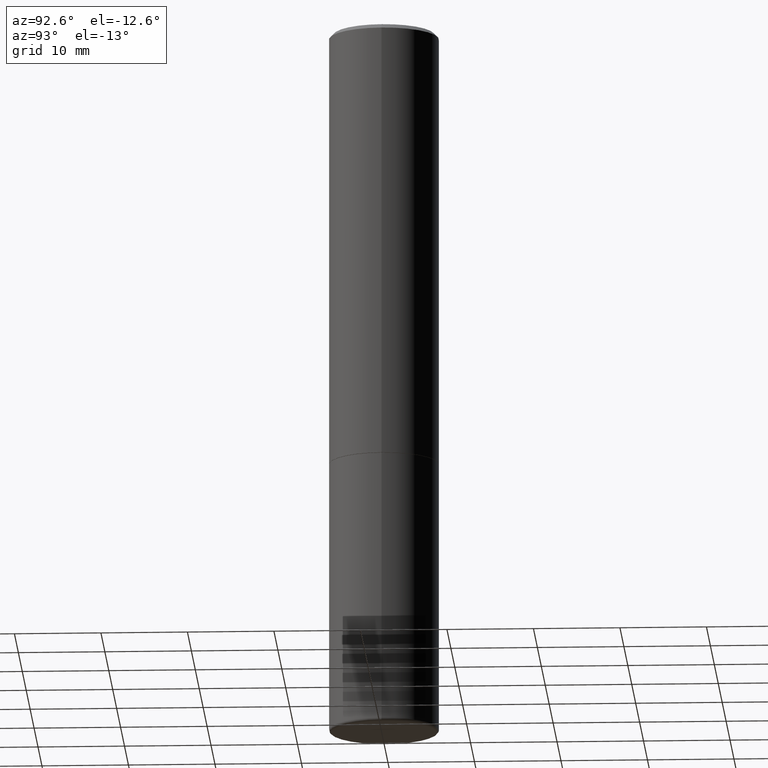
[diagram: clean part render]
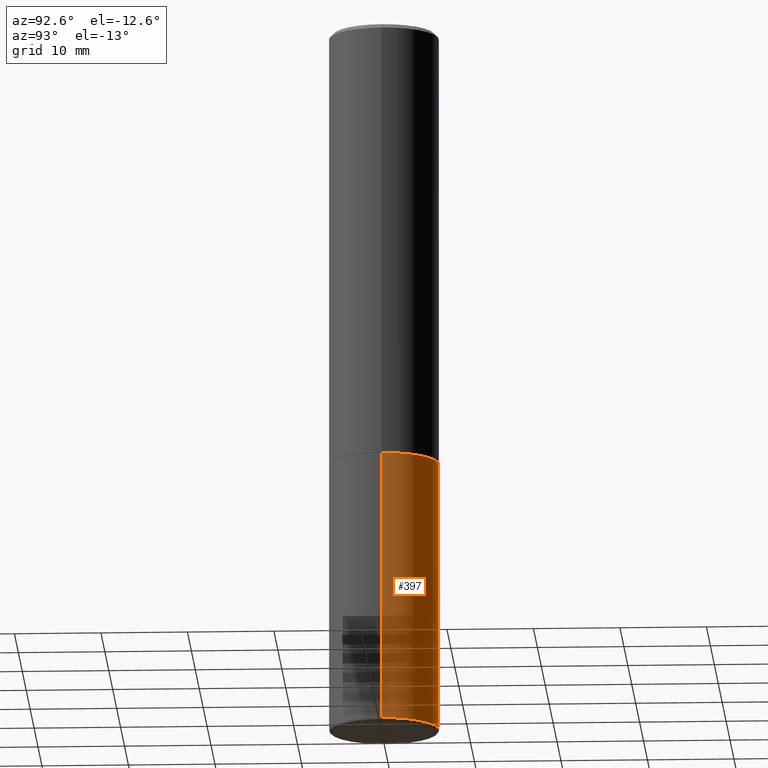
[diagram: same view with one face highlighted and labeled with its STEP entity id]
A machine part, auxiliary view. The second image highlights one B-rep face of the part: STEP entity #397.
In plain terms, the highlighted cylindrical surface (partial cylindrical patch) has radius 6.35 mm, axis along (-0, 0, 1).
Its self-contained STEP definition (entity closure, byte-faithful):
#7 = DIRECTION ( 'NONE',  ( 1.000000000000000000, -6.982962677686266711E-15, 0.000000000000000000 ) ) ;
#15 = DIRECTION ( 'NONE',  ( 1.000000000000000000, -6.982962677686266711E-15, 4.876176775795935793E-29 ) ) ;
#18 = AXIS2_PLACEMENT_3D ( 'NONE', #314, #23, #50 ) ;
#23 = DIRECTION ( 'NONE',  ( -2.445468806185136597E-29, 3.491481338843145583E-15, 1.000000000000000000 ) ) ;
#50 = DIRECTION ( 'NONE',  ( 1.000000000000000000, -6.982962677686270655E-15, 0.000000000000000000 ) ) ;
#66 = EDGE_LOOP ( 'NONE', ( #366, #259, #293, #162 ) ) ;
#76 = CARTESIAN_POINT ( 'NONE',  ( 0.2500000000000000000, -8.728703347107858632E-15, -2.000000000000000444 ) ) ;
#87 = VECTOR ( 'NONE', #333, 39.37007874015748143 ) ;
#104 = LINE ( 'NONE', #133, #87 ) ;
#120 = EDGE_CURVE ( 'NONE', #336, #132, #194, .T. ) ;
#132 = VERTEX_POINT ( 'NONE', #205 ) ;
#133 = CARTESIAN_POINT ( 'NONE',  ( 0.2500000000000000000, -1.745740669421566678E-15, 1.219044193948983948E-29 ) ) ;
#147 = CARTESIAN_POINT ( 'NONE',  ( 0.000000000000000000, 0.000000000000000000, 0.000000000000000000 ) ) ;
#150 = VERTEX_POINT ( 'NONE', #304 ) ;
#161 = CARTESIAN_POINT ( 'NONE',  ( -0.2500000000000000000, 1.776356839400250465E-15, -1.229733772563726445E-29 ) ) ;
#162 = ORIENTED_EDGE ( 'NONE', *, *, #354, .F. ) ;
#165 = DIRECTION ( 'NONE',  ( -2.445468806185136597E-29, 3.491481338843145583E-15, 1.000000000000000000 ) ) ;
#168 = VERTEX_POINT ( 'NONE', #76 ) ;
#191 = CIRCLE ( 'NONE', #284, 0.2500000000000000000 ) ;
#194 = LINE ( 'NONE', #161, #417 ) ;
#199 = CIRCLE ( 'NONE', #18, 0.2500000000000000000 ) ;
#205 = CARTESIAN_POINT ( 'NONE',  ( -0.2500000000000000000, -7.362595565021682805E-15, -2.000000000000000444 ) ) ;
#216 = FACE_OUTER_BOUND ( 'NONE', #66, .T. ) ;
#245 = AXIS2_PLACEMENT_3D ( 'NONE', #147, #267, #15 ) ;
#259 = ORIENTED_EDGE ( 'NONE', *, *, #120, .T. ) ;
#267 = DIRECTION ( 'NONE',  ( -2.445468806185136597E-29, 3.491481338843145583E-15, 1.000000000000000000 ) ) ;
#271 = CYLINDRICAL_SURFACE ( 'NONE', #245, 0.2500000000000000000 ) ;
#284 = AXIS2_PLACEMENT_3D ( 'NONE', #369, #165, #7 ) ;
#288 = DIRECTION ( 'NONE',  ( -2.445468806185136877E-29, 3.491481338843145188E-15, 1.000000000000000000 ) ) ;
#293 = ORIENTED_EDGE ( 'NONE', *, *, #342, .F. ) ;
#302 = EDGE_CURVE ( 'NONE', #150, #336, #199, .T. ) ;
#304 = CARTESIAN_POINT ( 'NONE',  ( 0.2500000000000002220, -1.304068280057914284E-14, -3.234999999999999876 ) ) ;
#314 = CARTESIAN_POINT ( 'NONE',  ( 7.911091588008916622E-29, -1.129494213115757616E-14, -3.234999999999999876 ) ) ;
#321 = CARTESIAN_POINT ( 'NONE',  ( -0.2500000000000002220, -9.518585291757322543E-15, -3.234999999999999876 ) ) ;
#333 = DIRECTION ( 'NONE',  ( -2.445468806185136877E-29, 3.491481338843145188E-15, 1.000000000000000000 ) ) ;
#336 = VERTEX_POINT ( 'NONE', #321 ) ;
#342 = EDGE_CURVE ( 'NONE', #168, #132, #191, .T. ) ;
#354 = EDGE_CURVE ( 'NONE', #150, #168, #104, .T. ) ;
#366 = ORIENTED_EDGE ( 'NONE', *, *, #302, .T. ) ;
#369 = CARTESIAN_POINT ( 'NONE',  ( 4.890937612370273754E-29, -6.982962677686291954E-15, -2.000000000000000444 ) ) ;
#397 = ADVANCED_FACE ( 'NONE', ( #216 ), #271, .T. ) ;
#417 = VECTOR ( 'NONE', #288, 39.37007874015748143 ) ;